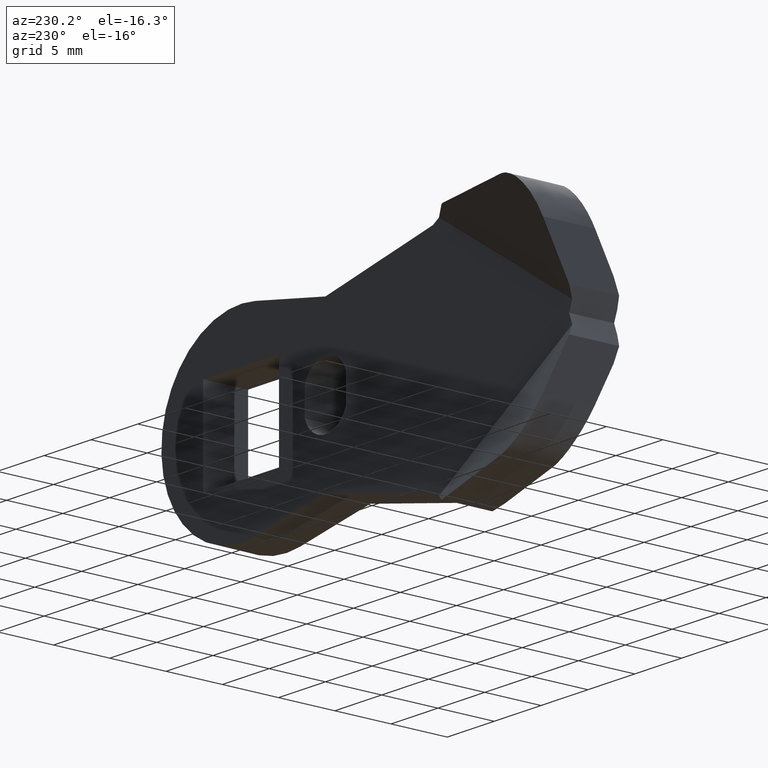
[diagram: clean part render]
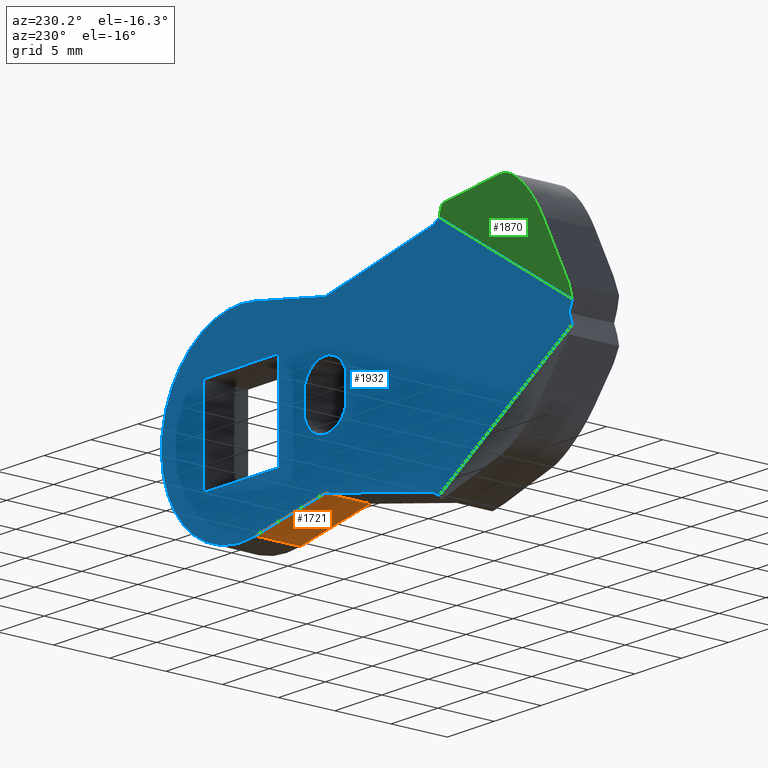
[diagram: same view with three faces highlighted in distinct colors, each labeled with its STEP entity id]
A machine part, auxiliary view with three faces highlighted in distinct colors.
Their STEP definitions:

[orange] entity #1721 — the highlighted face is a freeform B-spline surface patch.
#1686=CARTESIAN_POINT('',(-9.373438064525489,-4.199800003981321,-6.931953266618952));
#1687=CARTESIAN_POINT('',(-1.150324498597937,-4.199800003981321,-8.430352717856783));
#1688=CARTESIAN_POINT('',(-9.373438064525489,0.199800100093824,-6.931953266618952));
#1689=CARTESIAN_POINT('',(-1.150324498597937,0.199800100093824,-8.430352717856783));
#1690=B_SPLINE_SURFACE_WITH_KNOTS('',1,1,((#1686,#1688),(#1687,#1689)),.UNSPECIFIED.,.F.,.F.,.U.,(2,2),(2,2),(0.0,8.358516473251193),(0.0,4.399600104075145),.UNSPECIFIED.);
#1691=CARTESIAN_POINT('',(-1.523762737230895,-4.000000189989805,-8.362305542373589));
#1692=VERTEX_POINT('',#1691);
#1693=CARTESIAN_POINT('',(-9.000000427477490,-4.000000189989805,-7.000000332482520));
#1694=VERTEX_POINT('',#1693);
#1695=CARTESIAN_POINT('',(-1.523762737230895,-4.000000189989805,-8.362305542373589));
#1696=CARTESIAN_POINT('',(-9.000000427477490,-4.000000189989805,-7.000000332482520));
#1697=QUASI_UNIFORM_CURVE('',1,(#1695,#1696),.UNSPECIFIED.,.F.,.U.);
#1698=EDGE_CURVE('',#1692,#1694,#1697,.T.);
#1699=ORIENTED_EDGE('',*,*,#1698,.T.);
#1700=CARTESIAN_POINT('',(-9.000000427477490,0.0,-7.000000332482520));
#1701=VERTEX_POINT('',#1700);
#1702=CARTESIAN_POINT('',(-9.000000427477490,-4.000000189989805,-7.000000332482520));
#1703=CARTESIAN_POINT('',(-9.000000427477490,0.0,-7.000000332482520));
#1704=QUASI_UNIFORM_CURVE('',1,(#1702,#1703),.UNSPECIFIED.,.F.,.U.);
#1705=EDGE_CURVE('',#1694,#1701,#1704,.T.);
#1706=ORIENTED_EDGE('',*,*,#1705,.T.);
#1707=CARTESIAN_POINT('',(-1.523762737230895,0.0,-8.362305542373589));
#1708=VERTEX_POINT('',#1707);
#1709=CARTESIAN_POINT('',(-9.000000427477490,0.0,-7.000000332482520));
#1710=CARTESIAN_POINT('',(-1.523762737230895,0.0,-8.362305542373589));
#1711=QUASI_UNIFORM_CURVE('',1,(#1709,#1710),.UNSPECIFIED.,.F.,.U.);
#1712=EDGE_CURVE('',#1701,#1708,#1711,.T.);
#1713=ORIENTED_EDGE('',*,*,#1712,.T.);
#1714=CARTESIAN_POINT('',(-1.523762737230895,-4.000000189989805,-8.362305542373589));
#1715=CARTESIAN_POINT('',(-1.523762737230895,0.0,-8.362305542373589));
#1716=QUASI_UNIFORM_CURVE('',1,(#1714,#1715),.UNSPECIFIED.,.F.,.U.);
#1717=EDGE_CURVE('',#1692,#1708,#1716,.T.);
#1718=ORIENTED_EDGE('',*,*,#1717,.F.);
#1719=EDGE_LOOP('',(#1699,#1706,#1713,#1718));
#1720=FACE_OUTER_BOUND('',#1719,.T.);
#1721=ADVANCED_FACE('',(#1720),#1690,.F.);

[blue] entity #1932 — the highlighted face is a freeform B-spline surface patch.
#484=CARTESIAN_POINT('',(-35.335924504340753,-1.734723E-015,0.898662182766795));
#485=VERTEX_POINT('',#484);
#491=CARTESIAN_POINT('',(-35.000001662411087,0.0,1.136868E-013));
#492=VERTEX_POINT('',#491);
#493=CARTESIAN_POINT('',(-35.000001662411087,0.0,1.136868E-013));
#494=CARTESIAN_POINT('',(-35.335924504340753,-1.734723E-015,0.898662182766795));
#495=QUASI_UNIFORM_CURVE('',1,(#493,#494),.UNSPECIFIED.,.F.,.U.);
#496=EDGE_CURVE('',#492,#485,#495,.T.);
#525=CARTESIAN_POINT('',(-35.335924504340753,-8.673617E-016,-0.898662182766805));
#526=VERTEX_POINT('',#525);
#527=CARTESIAN_POINT('',(-35.335924504340753,-8.673617E-016,-0.898662182766805));
#528=CARTESIAN_POINT('',(-35.000001662411087,0.0,1.136868E-013));
#529=QUASI_UNIFORM_CURVE('',1,(#527,#528),.UNSPECIFIED.,.F.,.U.);
#530=EDGE_CURVE('',#526,#492,#529,.T.);
#621=CARTESIAN_POINT('',(-21.120222911500250,2.995498E-029,-9.901939858234620));
#622=VERTEX_POINT('',#621);
#628=CARTESIAN_POINT('',(-20.465839481394600,0.0,-9.500000000000000));
#629=VERTEX_POINT('',#628);
#630=CARTESIAN_POINT('',(-20.465839481394600,0.0,-9.500000000000000));
#631=CARTESIAN_POINT('',(-21.120222911500250,2.995498E-029,-9.901939858234620));
#632=QUASI_UNIFORM_CURVE('',1,(#630,#631),.UNSPECIFIED.,.F.,.U.);
#633=EDGE_CURVE('',#629,#622,#632,.T.);
#655=CARTESIAN_POINT('',(-21.120222911500250,2.775558E-014,9.901939858234590));
#656=VERTEX_POINT('',#655);
#671=CARTESIAN_POINT('',(-20.465839481390098,0.0,9.499999999999062));
#672=VERTEX_POINT('',#671);
#678=CARTESIAN_POINT('',(-21.120222911500250,2.775558E-014,9.901939858234590));
#679=CARTESIAN_POINT('',(-20.465839481390098,0.0,9.499999999999062));
#680=QUASI_UNIFORM_CURVE('',1,(#678,#679),.UNSPECIFIED.,.F.,.U.);
#681=EDGE_CURVE('',#656,#672,#680,.T.);
#1256=CARTESIAN_POINT('',(-11.200000531971460,0.0,-1.199079760973478));
#1257=VERTEX_POINT('',#1256);
#1264=CARTESIAN_POINT('',(-6.800000322982570,0.0,-1.199079760973490));
#1265=VERTEX_POINT('',#1264);
#1271=CARTESIAN_POINT('',(-11.200000531971471,0.0,-1.199079760973483));
#1272=CARTESIAN_POINT('',(-10.682488187863759,0.0,-2.800000132993068));
#1273=CARTESIAN_POINT('',(-9.000000427477021,0.0,-2.800000132993069));
#1274=CARTESIAN_POINT('',(-7.317512667090287,0.0,-2.800000132993068));
#1275=CARTESIAN_POINT('',(-6.800000322982569,0.0,-1.199079760973491));
#1283=(BOUNDED_CURVE()B_SPLINE_CURVE(2,(#1271,#1272,#1273,#1274,#1275),.UNSPECIFIED.,.F.,.U.)B_SPLINE_CURVE_WITH_KNOTS((3,2,3),(0.0,0.500000000000000,1.0),.UNSPECIFIED.)CURVE()GEOMETRIC_REPRESENTATION_ITEM()RATIONAL_B_SPLINE_CURVE((1.0,0.808575161402869,1.0,0.808575161402869,1.0))REPRESENTATION_ITEM(''));
#1284=EDGE_CURVE('',#1257,#1265,#1283,.T.);
#1296=CARTESIAN_POINT('',(-6.800000322982561,0.0,1.199079760973514));
#1297=VERTEX_POINT('',#1296);
#1303=CARTESIAN_POINT('',(-6.800000322982561,0.0,1.199079760973514));
#1304=CARTESIAN_POINT('',(-6.800000322982570,0.0,-1.199079760973490));
#1305=QUASI_UNIFORM_CURVE('',1,(#1303,#1304),.UNSPECIFIED.,.F.,.U.);
#1306=EDGE_CURVE('',#1297,#1265,#1305,.T.);
#1331=CARTESIAN_POINT('',(-11.200000531971479,0.0,1.199079760973516));
#1332=VERTEX_POINT('',#1331);
#1338=CARTESIAN_POINT('',(-6.800000322982560,0.0,1.199079760973514));
#1339=CARTESIAN_POINT('',(-7.317512667090298,0.0,2.800000132993075));
#1340=CARTESIAN_POINT('',(-9.000000427477021,0.0,2.800000132993075));
#1341=CARTESIAN_POINT('',(-10.682488187863745,0.0,2.800000132993075));
#1342=CARTESIAN_POINT('',(-11.200000531971479,0.0,1.199079760973517));
#1350=(BOUNDED_CURVE()B_SPLINE_CURVE(2,(#1338,#1339,#1340,#1341,#1342),.UNSPECIFIED.,.F.,.U.)B_SPLINE_CURVE_WITH_KNOTS((3,2,3),(0.0,0.500000000000000,1.0),.UNSPECIFIED.)CURVE()GEOMETRIC_REPRESENTATION_ITEM()RATIONAL_B_SPLINE_CURVE((1.0,0.808575161402874,1.0,0.808575161402874,1.0))REPRESENTATION_ITEM(''));
#1351=EDGE_CURVE('',#1297,#1332,#1350,.T.);
#1364=CARTESIAN_POINT('',(-11.200000531971460,0.0,-1.199079760973478));
#1365=CARTESIAN_POINT('',(-11.200000531971479,0.0,1.199079760973516));
#1366=QUASI_UNIFORM_CURVE('',1,(#1364,#1365),.UNSPECIFIED.,.F.,.U.);
#1367=EDGE_CURVE('',#1257,#1332,#1366,.T.);
#1525=CARTESIAN_POINT('',(4.050000192364690,0.0,-4.050000192364680));
#1526=VERTEX_POINT('',#1525);
#1532=CARTESIAN_POINT('',(-4.050000192364704,0.0,-4.050000192364680));
#1533=VERTEX_POINT('',#1532);
#1534=CARTESIAN_POINT('',(-4.050000192364704,0.0,-4.050000192364680));
#1535=CARTESIAN_POINT('',(4.050000192364690,0.0,-4.050000192364680));
#1536=QUASI_UNIFORM_CURVE('',1,(#1534,#1535),.UNSPECIFIED.,.F.,.U.);
#1537=EDGE_CURVE('',#1533,#1526,#1536,.T.);
#1560=CARTESIAN_POINT('',(-4.050000192364704,0.0,4.050000192364690));
#1561=VERTEX_POINT('',#1560);
#1562=CARTESIAN_POINT('',(-4.050000192364704,0.0,4.050000192364690));
#1563=CARTESIAN_POINT('',(-4.050000192364704,0.0,-4.050000192364680));
#1564=QUASI_UNIFORM_CURVE('',1,(#1562,#1563),.UNSPECIFIED.,.F.,.U.);
#1565=EDGE_CURVE('',#1561,#1533,#1564,.T.);
#1588=CARTESIAN_POINT('',(4.050000192364690,0.0,4.050000192364690));
#1589=VERTEX_POINT('',#1588);
#1590=CARTESIAN_POINT('',(4.050000192364690,0.0,4.050000192364690));
#1591=CARTESIAN_POINT('',(-4.050000192364704,0.0,4.050000192364690));
#1592=QUASI_UNIFORM_CURVE('',1,(#1590,#1591),.UNSPECIFIED.,.F.,.U.);
#1593=EDGE_CURVE('',#1589,#1561,#1592,.T.);
#1616=CARTESIAN_POINT('',(4.050000192364690,0.0,-4.050000192364680));
#1617=CARTESIAN_POINT('',(4.050000192364690,0.0,4.050000192364690));
#1618=QUASI_UNIFORM_CURVE('',1,(#1616,#1617),.UNSPECIFIED.,.F.,.U.);
#1619=EDGE_CURVE('',#1526,#1589,#1618,.T.);
#1635=CARTESIAN_POINT('',(-9.000000427477490,0.0,7.000000332482500));
#1636=VERTEX_POINT('',#1635);
#1637=CARTESIAN_POINT('',(-9.000000427477490,0.0,7.000000332482500));
#1638=CARTESIAN_POINT('',(-20.465839481390098,0.0,9.499999999999062));
#1639=QUASI_UNIFORM_CURVE('',1,(#1637,#1638),.UNSPECIFIED.,.F.,.U.);
#1640=EDGE_CURVE('',#1636,#672,#1639,.T.);
#1670=CARTESIAN_POINT('',(-1.523762737230810,0.0,8.362305542373401));
#1671=VERTEX_POINT('',#1670);
#1677=CARTESIAN_POINT('',(-1.523762737230810,0.0,8.362305542373401));
#1678=CARTESIAN_POINT('',(-9.000000427477490,0.0,7.000000332482500));
#1679=QUASI_UNIFORM_CURVE('',1,(#1677,#1678),.UNSPECIFIED.,.F.,.U.);
#1680=EDGE_CURVE('',#1671,#1636,#1679,.T.);
#1700=CARTESIAN_POINT('',(-9.000000427477490,0.0,-7.000000332482520));
#1701=VERTEX_POINT('',#1700);
#1707=CARTESIAN_POINT('',(-1.523762737230895,0.0,-8.362305542373589));
#1708=VERTEX_POINT('',#1707);
#1709=CARTESIAN_POINT('',(-9.000000427477490,0.0,-7.000000332482520));
#1710=CARTESIAN_POINT('',(-1.523762737230895,0.0,-8.362305542373589));
#1711=QUASI_UNIFORM_CURVE('',1,(#1709,#1710),.UNSPECIFIED.,.F.,.U.);
#1712=EDGE_CURVE('',#1701,#1708,#1711,.T.);
#1733=CARTESIAN_POINT('',(-20.465839481394600,0.0,-9.500000000000000));
#1734=CARTESIAN_POINT('',(-9.000000427477490,0.0,-7.000000332482520));
#1735=QUASI_UNIFORM_CURVE('',1,(#1733,#1734),.UNSPECIFIED.,.F.,.U.);
#1736=EDGE_CURVE('',#629,#1701,#1735,.T.);
#1760=CARTESIAN_POINT('',(-1.523762737230895,0.0,-8.362305542373589));
#1761=CARTESIAN_POINT('',(3.999032446587316,0.0,-9.368658331543504));
#1762=CARTESIAN_POINT('',(7.092747502208293,0.0,-4.684329165771763));
#1763=CARTESIAN_POINT('',(10.186462557829270,0.0,-2.428613E-014));
#1764=CARTESIAN_POINT('',(7.092747502208316,0.0,4.684329165771730));
#1765=CARTESIAN_POINT('',(3.999032446587364,0.0,9.368658331543479));
#1766=CARTESIAN_POINT('',(-1.523762737230806,0.0,8.362305542373399));
#1774=(BOUNDED_CURVE()B_SPLINE_CURVE(2,(#1760,#1761,#1762,#1763,#1764,#1765,#1766),.UNSPECIFIED.,.F.,.U.)B_SPLINE_CURVE_WITH_KNOTS((3,2,2,3),(0.0,0.333333333333333,0.666666666666667,1.0),.UNSPECIFIED.)CURVE()GEOMETRIC_REPRESENTATION_ITEM()RATIONAL_B_SPLINE_CURVE((1.0,0.834440842978928,1.0,0.834440842978928,1.0,0.834440842978928,1.0))REPRESENTATION_ITEM(''));
#1775=EDGE_CURVE('',#1708,#1671,#1774,.T.);
#1827=CARTESIAN_POINT('',(-21.120222911500250,2.995498E-029,-9.901939858234620));
#1828=CARTESIAN_POINT('',(-35.335924504340753,-8.673617E-016,-0.898662182766805));
#1829=QUASI_UNIFORM_CURVE('',1,(#1827,#1828),.UNSPECIFIED.,.F.,.U.);
#1830=EDGE_CURVE('',#622,#526,#1829,.T.);
#1860=CARTESIAN_POINT('',(-35.335924504340753,-1.734723E-015,0.898662182766795));
#1861=CARTESIAN_POINT('',(-21.120222911500250,2.775558E-014,9.901939858234590));
#1862=QUASI_UNIFORM_CURVE('',1,(#1860,#1861),.UNSPECIFIED.,.F.,.U.);
#1863=EDGE_CURVE('',#485,#656,#1862,.T.);
#1902=CARTESIAN_POINT('',(-37.525530514537472,0.0,-10.891143169125820));
#1903=CARTESIAN_POINT('',(-37.525530514537472,0.0,10.891142637944339));
#1904=CARTESIAN_POINT('',(10.689606022001341,0.0,-10.891143169125820));
#1905=CARTESIAN_POINT('',(10.689606022001341,0.0,10.891142637944339));
#1906=B_SPLINE_SURFACE_WITH_KNOTS('',1,1,((#1902,#1904),(#1903,#1905)),.UNSPECIFIED.,.F.,.F.,.U.,(2,2),(2,2),(0.0,21.782285807070160),(0.0,48.215136536538807),.UNSPECIFIED.);
#1907=ORIENTED_EDGE('',*,*,#1830,.T.);
#1908=ORIENTED_EDGE('',*,*,#530,.T.);
#1909=ORIENTED_EDGE('',*,*,#496,.T.);
#1910=ORIENTED_EDGE('',*,*,#1863,.T.);
#1911=ORIENTED_EDGE('',*,*,#681,.T.);
#1912=ORIENTED_EDGE('',*,*,#1640,.F.);
#1913=ORIENTED_EDGE('',*,*,#1680,.F.);
#1914=ORIENTED_EDGE('',*,*,#1775,.F.);
#1915=ORIENTED_EDGE('',*,*,#1712,.F.);
#1916=ORIENTED_EDGE('',*,*,#1736,.F.);
#1917=ORIENTED_EDGE('',*,*,#633,.T.);
#1918=EDGE_LOOP('',(#1907,#1908,#1909,#1910,#1911,#1912,#1913,#1914,#1915,#1916,#1917));
#1919=FACE_OUTER_BOUND('',#1918,.T.);
#1920=ORIENTED_EDGE('',*,*,#1367,.F.);
#1921=ORIENTED_EDGE('',*,*,#1284,.T.);
#1922=ORIENTED_EDGE('',*,*,#1306,.F.);
#1923=ORIENTED_EDGE('',*,*,#1351,.T.);
#1924=EDGE_LOOP('',(#1920,#1921,#1922,#1923));
#1925=FACE_BOUND('',#1924,.T.);
#1926=ORIENTED_EDGE('',*,*,#1537,.T.);
#1927=ORIENTED_EDGE('',*,*,#1619,.T.);
#1928=ORIENTED_EDGE('',*,*,#1593,.T.);
#1929=ORIENTED_EDGE('',*,*,#1565,.T.);
#1930=EDGE_LOOP('',(#1926,#1927,#1928,#1929));
#1931=FACE_BOUND('',#1930,.T.);
#1932=ADVANCED_FACE('',(#1919,#1925,#1931),#1906,.T.);

[green] entity #1870 — the highlighted face is a freeform B-spline surface patch.
#58=CARTESIAN_POINT('',(-22.319539963078149,0.684391381523998,10.534270565629260));
#59=VERTEX_POINT('',#58);
#60=CARTESIAN_POINT('',(-22.030517662878101,0.558393820271253,10.461067315452521));
#61=VERTEX_POINT('',#60);
#62=CARTESIAN_POINT('',(-22.319539963078149,0.684391381524002,10.534270565629260));
#63=CARTESIAN_POINT('',(-22.163596123669578,0.640026928673456,10.542807676231467));
#64=CARTESIAN_POINT('',(-22.030517662878069,0.558393820271235,10.461067315452469));
#72=(BOUNDED_CURVE()B_SPLINE_CURVE(2,(#62,#63,#64),.UNSPECIFIED.,.F.,.U.)CURVE()GEOMETRIC_REPRESENTATION_ITEM()QUASI_UNIFORM_CURVE()RATIONAL_B_SPLINE_CURVE((1.0,0.954519457188069,1.0))REPRESENTATION_ITEM(''));
#73=EDGE_CURVE('',#59,#61,#72,.T.);
#417=CARTESIAN_POINT('',(-35.414167804088997,2.660803319190695,6.260583718898571));
#418=VERTEX_POINT('',#417);
#419=CARTESIAN_POINT('',(-31.639469198980152,3.335817450836445,10.024053124571640));
#420=VERTEX_POINT('',#419);
#421=CARTESIAN_POINT('',(-35.414167804088997,2.660803319190695,6.260583718898571));
#422=CARTESIAN_POINT('',(-35.208168835477551,4.351076581058439,9.828685461326634));
#423=CARTESIAN_POINT('',(-31.639469198980152,3.335817450836445,10.024053124571640));
#431=(BOUNDED_CURVE()B_SPLINE_CURVE(2,(#421,#422,#423),.UNSPECIFIED.,.F.,.U.)CURVE()GEOMETRIC_REPRESENTATION_ITEM()QUASI_UNIFORM_CURVE()RATIONAL_B_SPLINE_CURVE((1.0,0.745695443792474,1.0))REPRESENTATION_ITEM(''));
#432=EDGE_CURVE('',#418,#420,#431,.T.);
#477=CARTESIAN_POINT('',(-35.671847346268599,0.546477974692497,1.797324365530490));
#478=VERTEX_POINT('',#477);
#484=CARTESIAN_POINT('',(-35.335924504340753,-1.734723E-015,0.898662182766795));
#485=VERTEX_POINT('',#484);
#486=CARTESIAN_POINT('',(-35.335924504340753,-1.734723E-015,0.898662182766795));
#487=CARTESIAN_POINT('',(-35.671847346268599,0.546477974692497,1.797324365530490));
#488=QUASI_UNIFORM_CURVE('',1,(#486,#487),.UNSPECIFIED.,.F.,.U.);
#489=EDGE_CURVE('',#485,#478,#488,.T.);
#584=CARTESIAN_POINT('',(-22.319539963078149,0.684391381523998,10.534270565629260));
#585=CARTESIAN_POINT('',(-31.639469198980152,3.335817450836445,10.024053124571640));
#586=QUASI_UNIFORM_CURVE('',1,(#584,#585),.UNSPECIFIED.,.F.,.U.);
#587=EDGE_CURVE('',#59,#420,#586,.T.);
#655=CARTESIAN_POINT('',(-21.120222911500250,2.775558E-014,9.901939858234590));
#656=VERTEX_POINT('',#655);
#657=CARTESIAN_POINT('',(-21.120222911500250,2.775558E-014,9.901939858234590));
#658=CARTESIAN_POINT('',(-22.030517662878101,0.558393820271253,10.461067315452521));
#659=QUASI_UNIFORM_CURVE('',1,(#657,#658),.UNSPECIFIED.,.F.,.U.);
#660=EDGE_CURVE('',#656,#61,#659,.T.);
#1842=CARTESIAN_POINT('',(-35.414167804088997,2.660803319190695,6.260583718898571));
#1843=CARTESIAN_POINT('',(-35.671847346268599,0.546477974692497,1.797324365530490));
#1844=QUASI_UNIFORM_CURVE('',1,(#1842,#1843),.UNSPECIFIED.,.F.,.U.);
#1845=EDGE_CURVE('',#418,#478,#1844,.T.);
#1852=CARTESIAN_POINT('',(-36.515315623633683,0.111928935748631,0.379352760137077));
#1853=CARTESIAN_POINT('',(-20.998193140484300,-4.233211040077634,1.369826031284106));
#1854=CARTESIAN_POINT('',(-35.848225017057807,4.732689769405725,10.199431959443229));
#1855=CARTESIAN_POINT('',(-20.331102533908439,0.387549793579460,11.189905230590270));
#1856=B_SPLINE_SURFACE_WITH_KNOTS('',1,1,((#1852,#1854),(#1853,#1855)),.UNSPECIFIED.,.F.,.F.,.U.,(2,2),(2,2),(0.0,16.144422221542651),(0.0,10.873380157057261),.UNSPECIFIED.);
#1857=ORIENTED_EDGE('',*,*,#587,.F.);
#1858=ORIENTED_EDGE('',*,*,#73,.T.);
#1859=ORIENTED_EDGE('',*,*,#660,.F.);
#1860=CARTESIAN_POINT('',(-35.335924504340753,-1.734723E-015,0.898662182766795));
#1861=CARTESIAN_POINT('',(-21.120222911500250,2.775558E-014,9.901939858234590));
#1862=QUASI_UNIFORM_CURVE('',1,(#1860,#1861),.UNSPECIFIED.,.F.,.U.);
#1863=EDGE_CURVE('',#485,#656,#1862,.T.);
#1864=ORIENTED_EDGE('',*,*,#1863,.F.);
#1865=ORIENTED_EDGE('',*,*,#489,.T.);
#1866=ORIENTED_EDGE('',*,*,#1845,.F.);
#1867=ORIENTED_EDGE('',*,*,#432,.T.);
#1868=EDGE_LOOP('',(#1857,#1858,#1859,#1864,#1865,#1866,#1867));
#1869=FACE_OUTER_BOUND('',#1868,.T.);
#1870=ADVANCED_FACE('',(#1869),#1856,.F.);